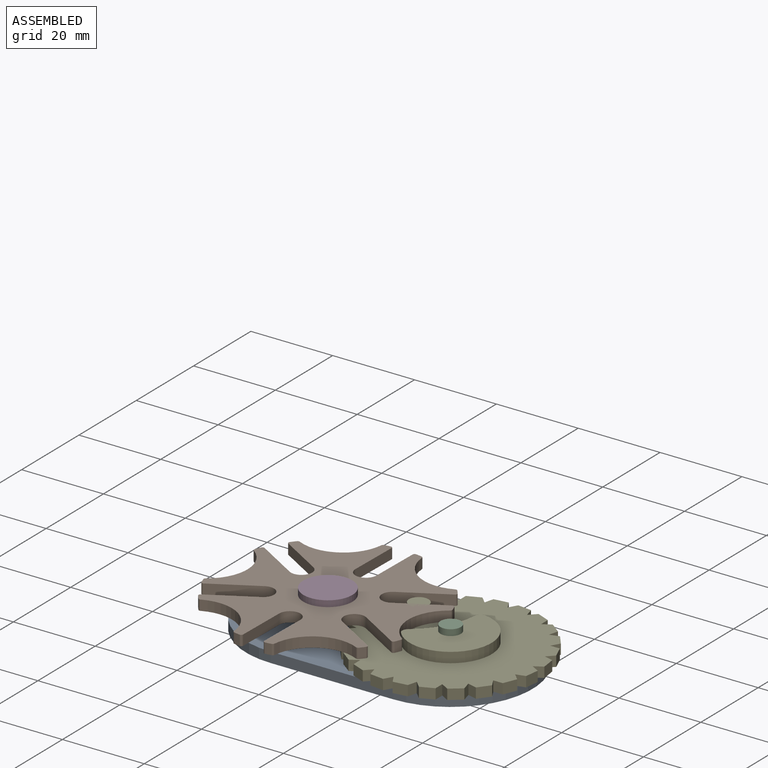
[diagram: assembled view]
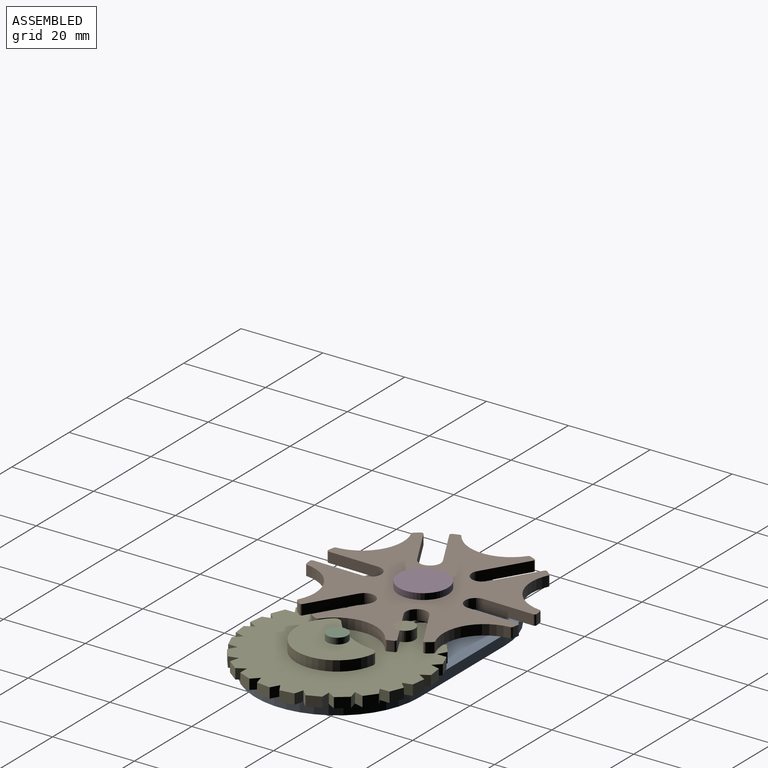
[diagram: assembled view, second angle]
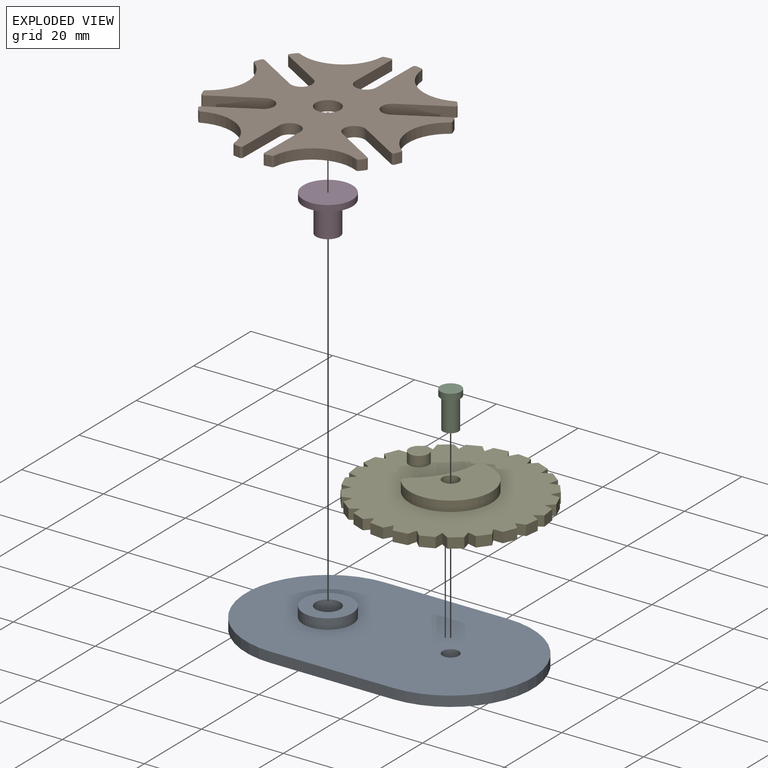
[diagram: exploded view]
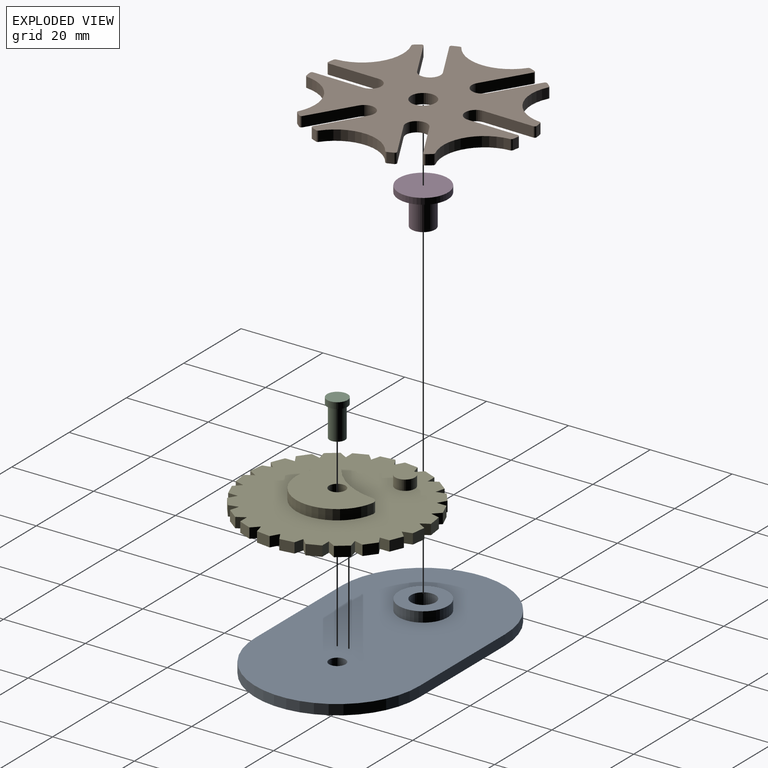
[diagram: exploded view, second angle]
ASSEMBLY  parts=5 mates=8
PART A: 10 faces, bbox 70x40x5 mm
  f0: cylinder r=20mm len=40mm, axis (0,0,-1), area 157.1mm2, adj f1,f4,f5,f6
  f1: plane 30x2.5mm, normal (0,-1,0), area 75mm2, adj f0,f2,f5,f6
  f2: cylinder r=20mm len=40mm, axis (0,0,-1), area 157.1mm2, adj f1,f4,f5,f6
  f3: cylinder r=2mm len=4mm, axis (0,0,-1), area 31.4mm2, adj f5,f6
  f4: plane 30x2.5mm, normal (0,1,0), area 75mm2, adj f0,f2,f5,f6
  f5: plane 70x40mm, normal (0,0,1), area 2331mm2, adj f0,f1,f2,f3,f4,f7
  f6: plane 70x40mm, normal (0,0,-1), area 2415.8mm2, adj f0,f1,f2,f3,f4,f8
  f7: cylinder r=6mm len=12mm, axis (0,0,-1), area 94.2mm2, adj f5,f9
  f8: cylinder r=3mm len=6mm, axis (0,0,-1), area 94.2mm2, adj f6,f9
  f9: plane 12x12mm, normal (0,0,1), area 84.8mm2, adj f7,f8
PART B: 63 faces, bbox 49x51.6x2.5 mm
  f0: cylinder r=10mm len=14.2mm, axis (0,0,-1), area 48mm2, adj f37,f38,f39,f62
  f1: cylinder r=25.98mm len=2.5mm, axis (0,0,-1), area 3.7mm2, adj f37,f38,f39,f40
  f2: plane 10.65x6.15mm, normal (-0.5,-0.87,0), area 30.8mm2, adj f3,f37,f38,f40
  f3: cylinder r=2.6mm len=4.85mm, axis (0,0,-1), area 20.4mm2, adj f2,f4,f37,f38
  f4: plane 10.65x6.15mm, normal (0.5,0.87,0), area 30.8mm2, adj f3,f37,f38,f41
  f5: cylinder r=25.98mm len=2.5mm, axis (0,0,-1), area 3.7mm2, adj f37,f38,f41,f42
  f6: cylinder r=10mm len=16.39mm, axis (0,0,-1), area 48mm2, adj f37,f38,f42,f43
  f7: cylinder r=25.98mm len=2.5mm, axis (0,0,-1), area 3.7mm2, adj f37,f38,f43,f44
  f8: plane 10.65x6.15mm, normal (0.5,-0.87,0), area 30.8mm2, adj f9,f37,f38,f44
  f9: cylinder r=2.6mm len=4.85mm, axis (0,0,-1), area 20.4mm2, adj f8,f10,f37,f38
  f10: plane 10.65x6.15mm, normal (-0.5,0.87,0), area 30.8mm2, adj f9,f37,f38,f45
  f11: cylinder r=25.98mm len=2.5mm, axis (0,0,-1), area 3.7mm2, adj f37,f38,f45,f46
  f12: cylinder r=10mm len=14.2mm, axis (0,0,-1), area 48mm2, adj f37,f38,f46,f47
  f13: cylinder r=25.98mm len=2.5mm, axis (0,0,-1), area 3.7mm2, adj f37,f38,f47,f48
  f14: plane 12.3x2.5mm, normal (1,0,0), area 30.8mm2, adj f15,f37,f38,f48
  f15: cylinder r=2.6mm len=5.2mm, axis (0,0,-1), area 20.4mm2, adj f14,f16,f37,f38
  f16: plane 12.3x2.5mm, normal (-1,0,0), area 30.8mm2, adj f15,f37,f38,f49
  f17: cylinder r=25.98mm len=2.5mm, axis (0,0,-1), area 3.7mm2, adj f37,f38,f49,f50
  f18: cylinder r=10mm len=14.2mm, axis (0,0,-1), area 48mm2, adj f37,f38,f50,f51
  f19: cylinder r=25.98mm len=2.5mm, axis (0,0,-1), area 3.7mm2, adj f37,f38,f51,f52
  f20: plane 10.65x6.15mm, normal (0.5,0.87,0), area 30.8mm2, adj f21,f37,f38,f52
  f21: cylinder r=2.6mm len=4.85mm, axis (0,0,-1), area 20.4mm2, adj f20,f22,f37,f38
  f22: plane 10.65x6.15mm, normal (-0.5,-0.87,0), area 30.8mm2, adj f21,f37,f38,f53
  f23: cylinder r=25.98mm len=2.5mm, axis (0,0,-1), area 3.7mm2, adj f37,f38,f53,f54
  f24: cylinder r=10mm len=16.39mm, axis (0,0,-1), area 48mm2, adj f37,f38,f54,f55
  f25: cylinder r=25.98mm len=2.5mm, axis (0,0,-1), area 3.7mm2, adj f37,f38,f55,f56
  f26: plane 10.65x6.15mm, normal (-0.5,0.87,0), area 30.8mm2, adj f27,f37,f38,f56
  f27: cylinder r=2.6mm len=4.85mm, axis (0,0,-1), area 20.4mm2, adj f26,f28,f37,f38
  f28: plane 10.65x6.15mm, normal (0.5,-0.87,0), area 30.8mm2, adj f27,f37,f38,f57
  f29: cylinder r=25.98mm len=2.5mm, axis (0,0,-1), area 3.7mm2, adj f37,f38,f57,f58
  f30: cylinder r=10mm len=14.2mm, axis (0,0,-1), area 48mm2, adj f37,f38,f58,f59
  f31: cylinder r=25.98mm len=2.5mm, axis (0,0,-1), area 3.7mm2, adj f37,f38,f59,f60
  f32: plane 12.3x2.5mm, normal (-1,0,0), area 30.8mm2, adj f33,f37,f38,f60
  f33: cylinder r=2.6mm len=5.2mm, axis (0,0,-1), area 20.4mm2, adj f32,f34,f37,f38
  f34: plane 12.3x2.5mm, normal (1,0,0), area 30.8mm2, adj f33,f37,f38,f61
  f35: cylinder r=3mm len=6mm, axis (0,0,-1), area 47.1mm2, adj f37,f38
  f36: cylinder r=25.98mm len=2.5mm, axis (0,0,-1), area 3.7mm2, adj f37,f38,f61,f62
  f37: plane 51.58x48.97mm, normal (0,0,1), area 1203.1mm2, adj f0,f1,f2,f3,f4,f5,f6,f7
  f38: plane 51.58x48.97mm, normal (0,0,-1), area 1203.1mm2, adj f0,f1,f2,f3,f4,f5,f6,f7
  f39: cylinder r=0.5mm len=2.5mm, axis (0,0,1), area 1.6mm2, adj f0,f1,f37,f38
  f40: cylinder r=0.5mm len=2.5mm, axis (0,0,-1), area 2.1mm2, adj f1,f2,f37,f38
  f41: cylinder r=0.5mm len=2.5mm, axis (0,0,-1), area 2.1mm2, adj f4,f5,f37,f38
  f42: cylinder r=0.5mm len=2.5mm, axis (0,0,1), area 1.6mm2, adj f5,f6,f37,f38
  f43: cylinder r=0.5mm len=2.5mm, axis (0,0,1), area 1.6mm2, adj f6,f7,f37,f38
  f44: cylinder r=0.5mm len=2.5mm, axis (0,0,-1), area 2.1mm2, adj f7,f8,f37,f38
  f45: cylinder r=0.5mm len=2.5mm, axis (0,0,-1), area 2.1mm2, adj f10,f11,f37,f38
  f46: cylinder r=0.5mm len=2.5mm, axis (0,0,1), area 1.6mm2, adj f11,f12,f37,f38
  f47: cylinder r=0.5mm len=2.5mm, axis (0,0,1), area 1.6mm2, adj f12,f13,f37,f38
  f48: cylinder r=0.5mm len=2.5mm, axis (0,0,-1), area 2.1mm2, adj f13,f14,f37,f38
  f49: cylinder r=0.5mm len=2.5mm, axis (0,0,-1), area 2.1mm2, adj f16,f17,f37,f38
  f50: cylinder r=0.5mm len=2.5mm, axis (0,0,1), area 1.6mm2, adj f17,f18,f37,f38
  f51: cylinder r=0.5mm len=2.5mm, axis (0,0,1), area 1.6mm2, adj f18,f19,f37,f38
  f52: cylinder r=0.5mm len=2.5mm, axis (0,0,-1), area 2.1mm2, adj f19,f20,f37,f38
  f53: cylinder r=0.5mm len=2.5mm, axis (0,0,-1), area 2.1mm2, adj f22,f23,f37,f38
  f54: cylinder r=0.5mm len=2.5mm, axis (0,0,1), area 1.6mm2, adj f23,f24,f37,f38
  f55: cylinder r=0.5mm len=2.5mm, axis (0,0,1), area 1.6mm2, adj f24,f25,f37,f38
  f56: cylinder r=0.5mm len=2.5mm, axis (0,0,-1), area 2.1mm2, adj f25,f26,f37,f38
  f57: cylinder r=0.5mm len=2.5mm, axis (0,0,-1), area 2.1mm2, adj f28,f29,f37,f38
  f58: cylinder r=0.5mm len=2.5mm, axis (0,0,1), area 1.6mm2, adj f29,f30,f37,f38
  f59: cylinder r=0.5mm len=2.5mm, axis (0,0,1), area 1.6mm2, adj f30,f31,f37,f38
  f60: cylinder r=0.5mm len=2.5mm, axis (0,0,-1), area 2.1mm2, adj f31,f32,f37,f38
  f61: cylinder r=0.5mm len=2.5mm, axis (0,0,-1), area 2.1mm2, adj f34,f36,f37,f38
  f62: cylinder r=0.5mm len=2.5mm, axis (0,0,1), area 1.6mm2, adj f0,f36,f37,f38
PART C: 5 faces, bbox 5x5x9 mm
  f0: cylinder r=1.9mm len=7.5mm, axis (0,0,1), area 89.5mm2, adj f1,f4
  f1: plane 3.8x3.8mm, normal (0,0,-1), area 11.3mm2, adj f0
  f2: cylinder r=2.5mm len=5mm, axis (0,0,-1), area 23.6mm2, adj f3,f4
  f3: plane 5x5mm, normal (0,0,1), area 19.6mm2, adj f2
  f4: plane 5x5mm, normal (0,0,-1), area 8.3mm2, adj f0,f2
PART D: 5 faces, bbox 12x12x9 mm
  f0: cylinder r=2.9mm len=7.5mm, axis (0,0,1), area 136.7mm2, adj f1,f4
  f1: plane 5.8x5.8mm, normal (0,0,-1), area 26.4mm2, adj f0
  f2: cylinder r=6mm len=12mm, axis (0,0,-1), area 56.5mm2, adj f3,f4
  f3: plane 12x12mm, normal (0,0,1), area 113.1mm2, adj f2
  f4: plane 12x12mm, normal (0,0,-1), area 86.7mm2, adj f0,f2
PART E: 82 faces, bbox 44.1x44.1x5 mm
  f0: plane 44.07x44.07mm, normal (0,0,1), area 1225mm2, adj f2,f4,f5,f8,f9,f10,f11,f12
  f1: plane 44.07x44.07mm, normal (0,0,-1), area 1455mm2, adj f6,f8,f9,f10,f11,f12,f13,f14
  f2: cylinder r=2.4mm len=4.8mm, axis (0,0,-1), area 37.7mm2, adj f0,f3
  f3: plane 4.8x4.8mm, normal (0,0,1), area 18.1mm2, adj f2
  f4: cylinder r=17.32mm len=12.71mm, axis (0,0,-1), area 37.9mm2, adj f0,f7,f80,f81
  f5: cylinder r=10mm len=19.86mm, axis (0,0,-1), area 96.3mm2, adj f0,f7,f80,f81
  f6: cylinder r=2mm len=5mm, axis (0,0,-1), area 62.8mm2, adj f1,f7
  f7: plane 19.88x18.04mm, normal (0,0,1), area 211.9mm2, adj f4,f5,f6,f80,f81
  f8: plane 2.5x2.27mm, normal (0.97,0.26,0), area 5.9mm2, adj f0,f1,f9,f79
  f9: plane 3.39x2.5mm, normal (0.13,0.99,0), area 8.6mm2, adj f0,f1,f8,f10
  f10: plane 2.5x2.04mm, normal (-0.87,0.5,0), area 5.9mm2, adj f0,f1,f9,f11
  f11: plane 2.5x2.04mm, normal (0.87,0.5,0), area 5.9mm2, adj f0,f1,f10,f12
  f12: plane 3.39x2.5mm, normal (-0.13,0.99,0), area 8.6mm2, adj f0,f1,f11,f13
  f13: plane 2.5x2.27mm, normal (-0.97,0.26,0), area 5.9mm2, adj f0,f1,f12,f14
  f14: plane 2.5x1.66mm, normal (0.71,0.71,0), area 5.9mm2, adj f0,f1,f13,f15
  f15: plane 3.16x2.5mm, normal (-0.38,0.92,0), area 8.6mm2, adj f0,f1,f14,f16
  f16: plane 2.5x2.35mm, normal (-1,0,0), area 5.9mm2, adj f0,f1,f15,f17
  f17: plane 2.5x2.04mm, normal (0.5,0.87,0), area 5.9mm2, adj f0,f1,f16,f18
  f18: plane 2.72x2.5mm, normal (-0.61,0.79,0), area 8.6mm2, adj f0,f1,f17,f19
  f19: plane 2.5x2.27mm, normal (-0.97,-0.26,0), area 5.9mm2, adj f0,f1,f18,f20
  f20: plane 2.5x2.27mm, normal (0.26,0.97,0), area 5.9mm2, adj f0,f1,f19,f21
  f21: plane 2.72x2.5mm, normal (-0.79,0.61,0), area 8.6mm2, adj f0,f1,f20,f22
  f22: plane 2.5x2.04mm, normal (-0.87,-0.5,0), area 5.9mm2, adj f0,f1,f21,f23
  f23: plane 2.5x2.35mm, normal (0,1,0), area 5.9mm2, adj f0,f1,f22,f24
  f24: plane 3.16x2.5mm, normal (-0.92,0.38,0), area 8.6mm2, adj f0,f1,f23,f25
  f25: plane 2.5x1.66mm, normal (-0.71,-0.71,0), area 5.9mm2, adj f0,f1,f24,f26
  f26: plane 2.5x2.27mm, normal (-0.26,0.97,0), area 5.9mm2, adj f0,f1,f25,f27
  f27: plane 3.39x2.5mm, normal (-0.99,0.13,0), area 8.6mm2, adj f0,f1,f26,f28
  f28: plane 2.5x2.04mm, normal (-0.5,-0.87,0), area 5.9mm2, adj f0,f1,f27,f29
  f29: plane 2.5x2.04mm, normal (-0.5,0.87,0), area 5.9mm2, adj f0,f1,f28,f30
  f30: plane 3.39x2.5mm, normal (-0.99,-0.13,0), area 8.6mm2, adj f0,f1,f29,f31
  f31: plane 2.5x2.27mm, normal (-0.26,-0.97,0), area 5.9mm2, adj f0,f1,f30,f32
  f32: plane 2.5x1.66mm, normal (-0.71,0.71,0), area 5.9mm2, adj f0,f1,f31,f33
  f33: plane 3.16x2.5mm, normal (-0.92,-0.38,0), area 8.6mm2, adj f0,f1,f32,f34
  f34: plane 2.5x2.35mm, normal (0,-1,0), area 5.9mm2, adj f0,f1,f33,f35
  f35: plane 2.5x2.04mm, normal (-0.87,0.5,0), area 5.9mm2, adj f0,f1,f34,f36
  f36: plane 2.72x2.5mm, normal (-0.79,-0.61,0), area 8.6mm2, adj f0,f1,f35,f37
  f37: plane 2.5x2.27mm, normal (0.26,-0.97,0), area 5.9mm2, adj f0,f1,f36,f38
  f38: plane 2.5x2.27mm, normal (-0.97,0.26,0), area 5.9mm2, adj f0,f1,f37,f39
  f39: plane 2.72x2.5mm, normal (-0.61,-0.79,0), area 8.6mm2, adj f0,f1,f38,f40
  f40: plane 2.5x2.04mm, normal (0.5,-0.87,0), area 5.9mm2, adj f0,f1,f39,f41
  f41: plane 2.5x2.35mm, normal (-1,0,0), area 5.9mm2, adj f0,f1,f40,f42
  f42: plane 3.16x2.5mm, normal (-0.38,-0.92,0), area 8.6mm2, adj f0,f1,f41,f43
  f43: plane 2.5x1.66mm, normal (0.71,-0.71,0), area 5.9mm2, adj f0,f1,f42,f44
  f44: plane 2.5x2.27mm, normal (-0.97,-0.26,0), area 5.9mm2, adj f0,f1,f43,f45
  f45: plane 3.39x2.5mm, normal (-0.13,-0.99,0), area 8.6mm2, adj f0,f1,f44,f46
  f46: plane 2.5x2.04mm, normal (0.87,-0.5,0), area 5.9mm2, adj f0,f1,f45,f47
  f47: plane 2.5x2.04mm, normal (-0.87,-0.5,0), area 5.9mm2, adj f0,f1,f46,f48
  f48: plane 3.39x2.5mm, normal (0.13,-0.99,0), area 8.6mm2, adj f0,f1,f47,f49
  f49: plane 2.5x2.27mm, normal (0.97,-0.26,0), area 5.9mm2, adj f0,f1,f48,f50
  f50: plane 2.5x1.66mm, normal (-0.71,-0.71,0), area 5.9mm2, adj f0,f1,f49,f51
  f51: plane 3.16x2.5mm, normal (0.38,-0.92,0), area 8.6mm2, adj f0,f1,f50,f52
  f52: plane 2.5x2.35mm, normal (1,0,0), area 5.9mm2, adj f0,f1,f51,f53
  f53: plane 2.5x2.04mm, normal (-0.5,-0.87,0), area 5.9mm2, adj f0,f1,f52,f54
  f54: plane 2.72x2.5mm, normal (0.61,-0.79,0), area 8.6mm2, adj f0,f1,f53,f55
  f55: plane 2.5x2.27mm, normal (0.97,0.26,0), area 5.9mm2, adj f0,f1,f54,f56
  f56: plane 2.5x2.27mm, normal (-0.26,-0.97,0), area 5.9mm2, adj f0,f1,f55,f57
  f57: plane 2.72x2.5mm, normal (0.79,-0.61,0), area 8.6mm2, adj f0,f1,f56,f58
  f58: plane 2.5x2.04mm, normal (0.87,0.5,0), area 5.9mm2, adj f0,f1,f57,f59
  f59: plane 2.5x2.35mm, normal (0,-1,0), area 5.9mm2, adj f0,f1,f58,f60
  f60: plane 3.16x2.5mm, normal (0.92,-0.38,0), area 8.6mm2, adj f0,f1,f59,f61
  f61: plane 2.5x1.66mm, normal (0.71,0.71,0), area 5.9mm2, adj f0,f1,f60,f62
  f62: plane 2.5x2.27mm, normal (0.26,-0.97,0), area 5.9mm2, adj f0,f1,f61,f63
  f63: plane 3.39x2.5mm, normal (0.99,-0.13,0), area 8.6mm2, adj f0,f1,f62,f64
  f64: plane 2.5x2.04mm, normal (0.5,0.87,0), area 5.9mm2, adj f0,f1,f63,f65
  f65: plane 2.5x2.04mm, normal (0.5,-0.87,0), area 5.9mm2, adj f0,f1,f64,f66
  f66: plane 3.39x2.5mm, normal (0.99,0.13,0), area 8.6mm2, adj f0,f1,f65,f67
  f67: plane 2.5x2.27mm, normal (0.26,0.97,0), area 5.9mm2, adj f0,f1,f66,f68
  f68: plane 2.5x1.66mm, normal (0.71,-0.71,0), area 5.9mm2, adj f0,f1,f67,f69
  f69: plane 3.16x2.5mm, normal (0.92,0.38,0), area 8.6mm2, adj f0,f1,f68,f70
  f70: plane 2.5x2.35mm, normal (0,1,0), area 5.9mm2, adj f0,f1,f69,f71
  f71: plane 2.5x2.04mm, normal (0.87,-0.5,0), area 5.9mm2, adj f0,f1,f70,f72
  f72: plane 2.72x2.5mm, normal (0.79,0.61,0), area 8.6mm2, adj f0,f1,f71,f73
  f73: plane 2.5x2.27mm, normal (-0.26,0.97,0), area 5.9mm2, adj f0,f1,f72,f74
  f74: plane 2.5x2.27mm, normal (0.97,-0.26,0), area 5.9mm2, adj f0,f1,f73,f75
  f75: plane 2.72x2.5mm, normal (0.61,0.79,0), area 8.6mm2, adj f0,f1,f74,f76
  f76: plane 2.5x2.04mm, normal (-0.5,0.87,0), area 5.9mm2, adj f0,f1,f75,f77
  f77: plane 2.5x2.35mm, normal (1,0,0), area 5.9mm2, adj f0,f1,f76,f78
  f78: plane 3.16x2.5mm, normal (0.38,0.92,0), area 8.6mm2, adj f0,f1,f77,f79
  f79: plane 2.5x1.66mm, normal (-0.71,0.71,0), area 5.9mm2, adj f0,f1,f8,f78
  f80: cylinder r=1.5mm len=2.5mm, axis (0,0,1), area 6.2mm2, adj f0,f4,f5,f7
  f81: cylinder r=1.5mm len=2.5mm, axis (0,0,1), area 6.2mm2, adj f0,f4,f5,f7
PLACE A t=(10.08,-28.87,-20.59)mm fixed
PLACE B rot(axis=(0,0,-1),1deg) t=(-4.92,-28.87,-15.59)mm
PLACE C rot(axis=(0,0,-1),90deg) t=(25.08,-28.87,-13.09)mm
PLACE D rot(axis=(0,0,1),30deg) t=(-4.92,-28.87,-13.09)mm
PLACE E rot(axis=(0,0,1),30.2deg) t=(-0.86,-43.95,-18.09)mm
MATE cylindrical A.f2 <-> C.f0  axis (0,0,-1) through (25.08,-28.87,-20.59)mm
MATE cylindrical E.f5 <-> A.f2  axis (0,0,-1) through (25.08,-28.87,-18.09)mm
MATE planar D.f0 <-> B.f7  axis (0,0,-1) through (-4.92,-28.87,-13.09)mm
MATE cylindrical B.f35 <-> A.f0  axis (0,0,-1) through (-4.92,-28.87,-15.59)mm
MATE cylindrical D.f0 <-> A.f0  axis (0,0,-1) through (-4.92,-28.87,-20.59)mm
MATE planar B.f36 <-> A.f0  axis (0,0,-1) through (-4.92,-28.87,-15.59)mm
MATE planar C.f0 <-> A.f2  axis (0,0,-1) through (25.08,-28.87,-20.59)mm
MATE planar E.f5 <-> A.f2  axis (0,0,-1) through (25.08,-28.87,-18.09)mm
